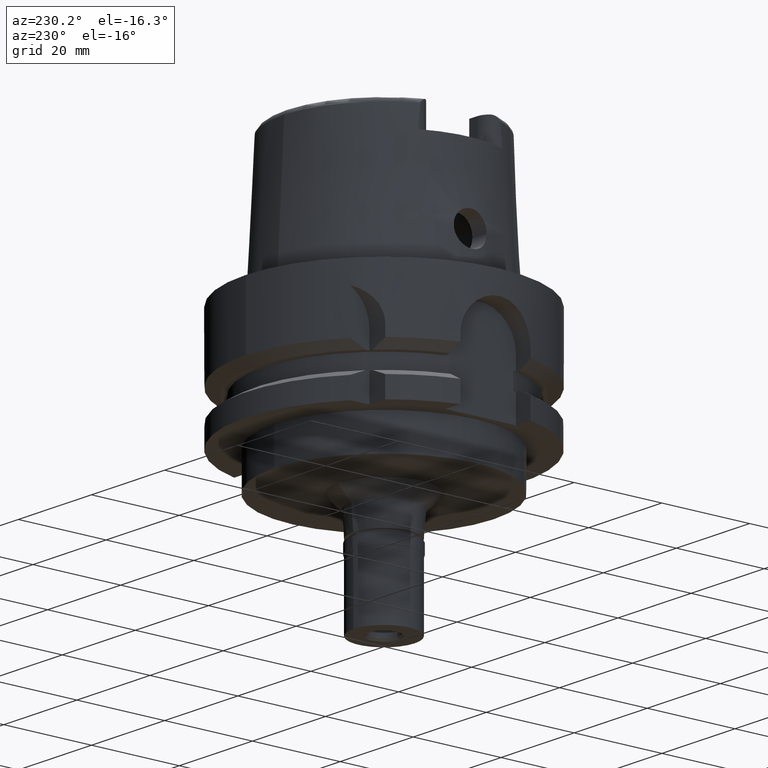
[diagram: clean part render]
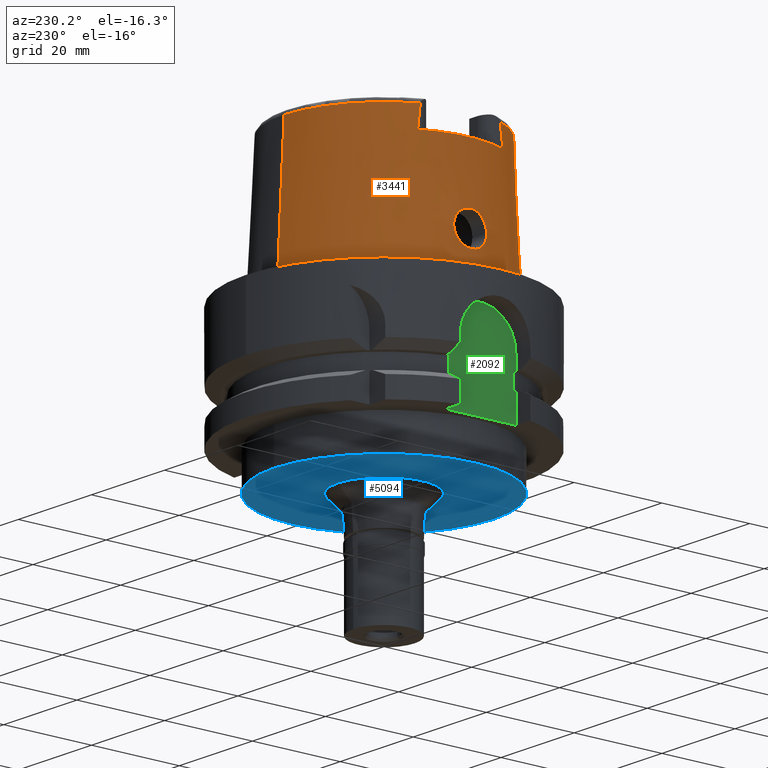
[diagram: same view with three faces highlighted in distinct colors, each labeled with its STEP entity id]
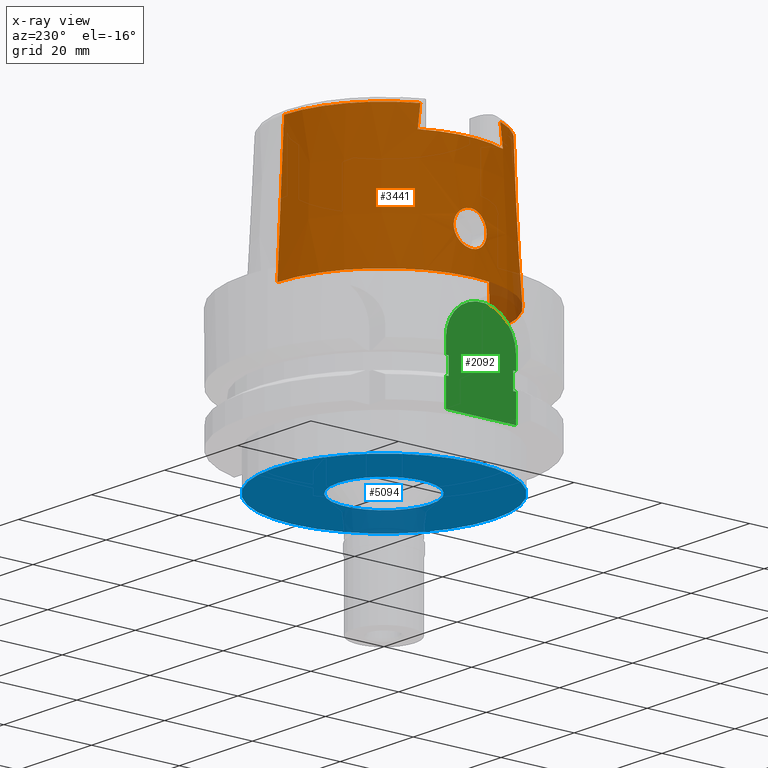
[diagram: x-ray of the same camera — body ghosted, the three highlighted faces saturated]
A machine part, auxiliary view with three faces highlighted in distinct colors.
The next image is the same camera in x-ray (body ghosted, the three faces saturated) — at least one of them is partly hidden behind the body in this view.
Their STEP definitions:

[orange] entity #3441 — the highlighted conical surface has half-angle 2.862 deg.
#4 = CARTESIAN_POINT ( 'NONE',  ( -23.58875001699196616, 2.574564850797994797, 11.72685958662398065 ) ) ;
#64 = CARTESIAN_POINT ( 'NONE',  ( -23.57128477181484882, 2.845667545521203490, 11.45766602963689351 ) ) ;
#71 = CARTESIAN_POINT ( 'NONE',  ( -20.87000036879000220, -9.149999171677000831, 30.54561049348000168 ) ) ;
#116 = CARTESIAN_POINT ( 'NONE',  ( -23.61657924669164288, -2.098325909179071136, 12.10797902731429687 ) ) ;
#129 = CARTESIAN_POINT ( 'NONE',  ( -24.04786263195594387, -0.4702633126472390845, 5.271690481783152471 ) ) ;
#154 = CARTESIAN_POINT ( 'NONE',  ( -23.99493838177408023, 1.440337845687796658, 5.537632199437698688 ) ) ;
#179 = CARTESIAN_POINT ( 'NONE',  ( -23.67991024269454670, 3.482346711928610450, 7.608659429627059545 ) ) ;
#205 = CARTESIAN_POINT ( 'NONE',  ( -23.54530297632626912, 3.701256703280609628, 9.614858301446849609 ) ) ;
#207 = CIRCLE ( 'NONE', #3477, 23.01499170873999134 ) ;
#236 = CARTESIAN_POINT ( 'NONE',  ( -23.97818696997195786, 1.634535709027145955, 5.624510286457308439 ) ) ;
#257 = ORIENTED_EDGE ( 'NONE', *, *, #438, .F. ) ;
#258 = CARTESIAN_POINT ( 'NONE',  ( -23.65001929101382316, 3.585069880303221712, 7.898283477232346250 ) ) ;
#281 = CARTESIAN_POINT ( 'NONE',  ( -23.83826107940458527, -2.728895089891620440, 6.425026308780917184 ) ) ;
#300 = VERTEX_POINT ( 'NONE', #1560 ) ;
#301 = EDGE_CURVE ( 'NONE', #3982, #883, #1581, .T. ) ;
#311 = CARTESIAN_POINT ( 'NONE',  ( -23.88426097276597204, -2.431710584441462153, 6.144432247697729110 ) ) ;
#331 = FACE_OUTER_BOUND ( 'NONE', #4742, .T. ) ;
#332 = CARTESIAN_POINT ( 'NONE',  ( -20.86999862957999952, 9.150003078075000573, 30.54568808301000260 ) ) ;
#335 = CARTESIAN_POINT ( 'NONE',  ( -23.57049151206109627, -3.749931562641862115, 8.962612975199364840 ) ) ;
#361 = CARTESIAN_POINT ( 'NONE',  ( -20.86999589934088206, 9.333533360508882382, 29.07185877597611423 ) ) ;
#363 = CARTESIAN_POINT ( 'NONE',  ( -23.57758549317970420, -2.752301977997573257, 11.54745544573285621 ) ) ;
#399 = CARTESIAN_POINT ( 'NONE',  ( -23.57990425752204544, -3.745051751882298330, 8.792906414019661554 ) ) ;
#415 = CARTESIAN_POINT ( 'NONE',  ( -20.87000036879000220, -9.145652147808000620, 30.58051874095000144 ) ) ;
#432 = CARTESIAN_POINT ( 'NONE',  ( -23.62931708850320689, -1.857752631484371975, 12.25985696227647104 ) ) ;
#438 = EDGE_CURVE ( 'NONE', #2729, #883, #1678, .T. ) ;
#460 = CARTESIAN_POINT ( 'NONE',  ( -23.64455459247221114, -1.525610330489168609, 12.42582259460134075 ) ) ;
#480 = DIRECTION ( 'NONE',  ( 0.0000000000000000000, 0.0000000000000000000, -1.000000000000000000 ) ) ;
#496 = CARTESIAN_POINT ( 'NONE',  ( -23.62970821708636393, 1.848056169651061342, 12.26369228928154698 ) ) ;
#516 = CARTESIAN_POINT ( 'NONE',  ( -23.63714667571653649, -1.692999689067097746, 12.34665581086419373 ) ) ;
#524 = CARTESIAN_POINT ( 'NONE',  ( -23.62529868437151848, 1.934705570356295645, 12.21255958658475471 ) ) ;
#532 = CARTESIAN_POINT ( 'NONE',  ( -20.87000294699999969, -9.702199254896999747, 26.00000000000000000 ) ) ;
#553 = CARTESIAN_POINT ( 'NONE',  ( -23.67751368057999883, 0.0000000000000000000, 12.75000000000000000 ) ) ;
#580 = CARTESIAN_POINT ( 'NONE',  ( -23.67006432208073008, 3.517764469676170513, 7.700118767947786935 ) ) ;
#609 = CARTESIAN_POINT ( 'NONE',  ( -23.76007306052839851, 3.144211881841432632, 6.956349106212639022 ) ) ;
#637 = CARTESIAN_POINT ( 'NONE',  ( -23.75806408867247654, 3.153762190329611581, 6.971118194561818804 ) ) ;
#639 = CARTESIAN_POINT ( 'NONE',  ( -20.86989308755000039, 9.124126285331000119, 30.75513742942000306 ) ) ;
#640 = EDGE_CURVE ( 'NONE', #2729, #3811, #3224, .T. ) ;
#642 = CARTESIAN_POINT ( 'NONE',  ( 0.0000000000000000000, -22.77198729362000051, 30.85992712280000205 ) ) ;
#659 = CARTESIAN_POINT ( 'NONE',  ( -23.62237113400223265, 3.666064389046725047, 8.201703203385223517 ) ) ;
#668 = CARTESIAN_POINT ( 'NONE',  ( -20.87000593984961938, -9.517515394184473010, 27.55706592323828730 ) ) ;
#684 = CARTESIAN_POINT ( 'NONE',  ( -23.65897439514683143, 3.556154743770473026, 7.806866387004321339 ) ) ;
#693 = DIRECTION ( 'NONE',  ( 0.0000000000000000000, 0.04993926899645239476, -0.9987522562738468945 ) ) ;
#706 = CARTESIAN_POINT ( 'NONE',  ( -23.65855430309792951, -3.562593482298612724, 7.799189175951979358 ) ) ;
#735 = CARTESIAN_POINT ( 'NONE',  ( -23.85944347772426966, -2.596594164589698384, 6.294305923045154572 ) ) ;
#765 = CARTESIAN_POINT ( 'NONE',  ( -23.69921245285050304, -3.409000711809893502, 7.437246423299503917 ) ) ;
#771 = B_SPLINE_CURVE_WITH_KNOTS ( 'NONE', 3,
 ( #2443, #1546, #668, #3260 ),
 .UNSPECIFIED., .F., .F.,
 ( 4, 4 ),
 ( 0.0000000000000000000, 1.000000000000000000 ),
 .UNSPECIFIED. ) ;
#792 = VERTEX_POINT ( 'NONE', #5342 ) ;
#793 = CARTESIAN_POINT ( 'NONE',  ( -23.70912838913670839, -3.369516560436834673, 7.352065524799214380 ) ) ;
#824 = CARTESIAN_POINT ( 'NONE',  ( -23.60572619668068484, -3.705337228431035967, 8.409952921779337842 ) ) ;
#840 = CARTESIAN_POINT ( 'NONE',  ( -20.86998014253000022, -9.136998446038999688, 30.65037012981000331 ) ) ;
#854 = CARTESIAN_POINT ( 'NONE',  ( -23.67751368057999883, 0.0000000000000000000, 12.75000000000000000 ) ) ;
#883 = VERTEX_POINT ( 'NONE', #2231 ) ;
#910 = CARTESIAN_POINT ( 'NONE',  ( -23.63957370645141154, -1.639864010352753976, 12.37291126517441242 ) ) ;
#917 = CARTESIAN_POINT ( 'NONE',  ( 0.0000000000000000000, 22.77198729362000051, 30.85992712280000205 ) ) ;
#948 = CARTESIAN_POINT ( 'NONE',  ( -23.64959580141450601, 1.401413020741177018, 12.47830550234064617 ) ) ;
#971 = CARTESIAN_POINT ( 'NONE',  ( -23.67751368058000949, -0.4545925740204055376, 12.75000000000000178 ) ) ;
#984 = CARTESIAN_POINT ( 'NONE',  ( -24.05252611746999847, 7.753366781647998699E-14, 5.250000000000000000 ) ) ;
#1010 = CARTESIAN_POINT ( 'NONE',  ( -24.05252611747000913, -0.2325259389844430147, 5.249999999999995559 ) ) ;
#1021 = CONICAL_SURFACE ( 'NONE', #4348, 23.54351105844999736, 0.04996004983832824653 ) ;
#1037 = B_SPLINE_CURVE_WITH_KNOTS ( 'NONE', 3,
 ( #71, #415, #840, #4248, #3875, #2545 ),
 .UNSPECIFIED., .F., .F.,
 ( 4, 1, 1, 4 ),
 ( 0.0000000000000000000, 0.3333333333333000081, 0.6666666666667000474, 1.000000000000000000 ),
 .UNSPECIFIED. ) ;
#1041 = AXIS2_PLACEMENT_3D ( 'NONE', #1102, #4514, #2405 ) ;
#1057 = CARTESIAN_POINT ( 'NONE',  ( -23.53725573122616765, 3.557858485254748349, 10.21118617482782476 ) ) ;
#1084 = CARTESIAN_POINT ( 'NONE',  ( -23.79034258004921654, 2.994405124270681284, 6.739210068966854372 ) ) ;
#1102 = CARTESIAN_POINT ( 'NONE',  ( 0.0000000000000000000, 0.0000000000000000000, 1.136868377215999875E-13 ) ) ;
#1110 = CARTESIAN_POINT ( 'NONE',  ( -23.77618571331245079, 3.066995713114651689, 6.838710927175277732 ) ) ;
#1161 = CARTESIAN_POINT ( 'NONE',  ( -23.58295904043572122, -2.665667729226151472, 11.63755863581591754 ) ) ;
#1186 = CARTESIAN_POINT ( 'NONE',  ( -23.58534140365796361, -3.738892855428105566, 8.705622209991876304 ) ) ;
#1200 = VECTOR ( 'NONE', #693, 1000.000000000000000 ) ;
#1213 = EDGE_LOOP ( 'NONE', ( #3374, #1283 ) ) ;
#1214 = CARTESIAN_POINT ( 'NONE',  ( -23.98201706802171174, -1.602910457251492726, 5.604103511304382224 ) ) ;
#1233 = CARTESIAN_POINT ( 'NONE',  ( 0.0000000000000000000, 24.31503482328999866, 1.136868377215999875E-13 ) ) ;
#1234 = VERTEX_POINT ( 'NONE', #3124 ) ;
#1247 = CARTESIAN_POINT ( 'NONE',  ( -23.99772560849472924, -1.405650542215104881, 5.523405557853796388 ) ) ;
#1276 = CARTESIAN_POINT ( 'NONE',  ( -23.89176524947148650, -2.378653585503664125, 6.100160176395899470 ) ) ;
#1283 = ORIENTED_EDGE ( 'NONE', *, *, #1642, .F. ) ;
#1306 = CARTESIAN_POINT ( 'NONE',  ( -23.60633077792958190, -2.281161106848900832, 11.97686305018727104 ) ) ;
#1362 = CARTESIAN_POINT ( 'NONE',  ( -23.59773053671585075, -2.428579577243722643, 11.85885565549168241 ) ) ;
#1396 = CARTESIAN_POINT ( 'NONE',  ( -23.59421910397722755, -2.486437859569925912, 11.80783448945993541 ) ) ;
#1404 = CARTESIAN_POINT ( 'NONE',  ( -23.59785341691926774, 2.426157914605385102, 11.86007394336473908 ) ) ;
#1431 = CARTESIAN_POINT ( 'NONE',  ( -23.56133259209761377, 3.007549785901466155, 11.25316385626255133 ) ) ;
#1486 = EDGE_CURVE ( 'NONE', #300, #2438, #771, .T. ) ;
#1488 = CARTESIAN_POINT ( 'NONE',  ( -23.53989810549436612, 3.456277710252088742, 10.45488464985181665 ) ) ;
#1491 = CARTESIAN_POINT ( 'NONE',  ( -20.86998096573000083, 9.136997359048001144, 30.65033297779000065 ) ) ;
#1515 = CARTESIAN_POINT ( 'NONE',  ( -23.94687265321820746, 1.945161834120303856, 5.791490483410829171 ) ) ;
#1541 = CARTESIAN_POINT ( 'NONE',  ( -23.74249516755747891, 3.226044268643991408, 7.087871960353561818 ) ) ;
#1546 = CARTESIAN_POINT ( 'NONE',  ( -20.87000110298124866, -9.333470438818018522, 29.07226938048291842 ) ) ;
#1560 = CARTESIAN_POINT ( 'NONE',  ( -20.87000036879000220, -9.149999171677000831, 30.54561049348000168 ) ) ;
#1568 = CARTESIAN_POINT ( 'NONE',  ( -23.99452863939412595, 1.445392203430266198, 5.539741759684884137 ) ) ;
#1581 = CIRCLE ( 'NONE', #1041, 24.31503482328999866 ) ;
#1595 = DIRECTION ( 'NONE',  ( 0.0000000000000000000, 0.0000000000000000000, -1.000000000000000000 ) ) ;
#1602 = CARTESIAN_POINT ( 'NONE',  ( -23.58261465558709347, -2.671205752385319432, 11.63195149976124831 ) ) ;
#1623 = DIRECTION ( 'NONE',  ( -0.9164655183265837390, 0.4001136759951928745, 0.0000000000000000000 ) ) ;
#1626 = CARTESIAN_POINT ( 'NONE',  ( -23.59696935345301227, -3.722233984854299571, 8.529482803203466190 ) ) ;
#1642 = EDGE_CURVE ( 'NONE', #5544, #1234, #5500, .T. ) ;
#1656 = CARTESIAN_POINT ( 'NONE',  ( -23.99887326313295333, -1.390995723918068805, 5.517516222861456043 ) ) ;
#1678 = LINE ( 'NONE', #3376, #4723 ) ;
#1684 = CARTESIAN_POINT ( 'NONE',  ( -23.99701889202876615, -1.414584352107863818, 5.527034533265432259 ) ) ;
#1694 = B_SPLINE_CURVE_WITH_KNOTS ( 'NONE', 3,
 ( #4679, #5485, #361, #332 ),
 .UNSPECIFIED., .F., .F.,
 ( 4, 4 ),
 ( 0.0000000000000000000, 1.000000000000000000 ),
 .UNSPECIFIED. ) ;
#1714 = CARTESIAN_POINT ( 'NONE',  ( -23.85633652460178311, -2.616246736698623288, 6.313396781246351175 ) ) ;
#1743 = CARTESIAN_POINT ( 'NONE',  ( -23.60404926964810457, -2.320662855615145848, 11.94604183881587822 ) ) ;
#1784 = ORIENTED_EDGE ( 'NONE', *, *, #2164, .T. ) ;
#1795 = DIRECTION ( 'NONE',  ( -0.0009289215035773248919, -0.9999995685523268563, 0.0000000000000000000 ) ) ;
#1831 = CARTESIAN_POINT ( 'NONE',  ( -23.62336603701600168, -1.974776590561349909, 12.19128240091901283 ) ) ;
#1837 = CARTESIAN_POINT ( 'NONE',  ( -23.61183321109423261, 2.185152663705764997, 12.05002763737759430 ) ) ;
#1866 = CARTESIAN_POINT ( 'NONE',  ( -23.62302681550758265, 1.978568988340684509, 12.18589201695617241 ) ) ;
#1891 = CARTESIAN_POINT ( 'NONE',  ( -24.05252611747000557, 0.4686397481751468641, 5.250000000000009770 ) ) ;
#1917 = CARTESIAN_POINT ( 'NONE',  ( -23.67576986190902488, 3.497385901686971721, 7.646759291312835494 ) ) ;
#1946 = CARTESIAN_POINT ( 'NONE',  ( -23.83490326423959971, 2.746041478824620796, 6.445902998444733356 ) ) ;
#1971 = ORIENTED_EDGE ( 'NONE', *, *, #1486, .T. ) ;
#1973 = CARTESIAN_POINT ( 'NONE',  ( -23.54004177108325635, 3.451053092575791403, 10.46723464619089228 ) ) ;
#1997 = CARTESIAN_POINT ( 'NONE',  ( -23.72430634662387661, 3.306446947548019377, 7.229778946653763860 ) ) ;
#2020 = FACE_BOUND ( 'NONE', #1213, .T. ) ;
#2023 = CARTESIAN_POINT ( 'NONE',  ( -23.57503235452857382, -3.748151059429171372, 8.878855396218595430 ) ) ;
#2049 = CARTESIAN_POINT ( 'NONE',  ( -23.53846546200051648, -3.576437483214371049, 10.12934956082458982 ) ) ;
#2075 = CARTESIAN_POINT ( 'NONE',  ( -23.54140459359493320, -3.393719239049563630, 10.60788145283110318 ) ) ;
#2106 = CARTESIAN_POINT ( 'NONE',  ( -23.53949835527918921, -3.472071047647863118, 10.41677867466162510 ) ) ;
#2140 = CARTESIAN_POINT ( 'NONE',  ( -23.54098471601965414, -3.658672201994147777, 9.831599541267577180 ) ) ;
#2160 = VERTEX_POINT ( 'NONE', #4205 ) ;
#2164 = EDGE_CURVE ( 'NONE', #792, #4301, #1694, .T. ) ;
#2171 = CARTESIAN_POINT ( 'NONE',  ( -23.61426561017464820, -2.140262431694830436, 12.07931298180139024 ) ) ;
#2178 = CARTESIAN_POINT ( 'NONE',  ( -23.66477397101428437, 0.9438609081349317309, 12.63150019554256787 ) ) ;
#2201 = CARTESIAN_POINT ( 'NONE',  ( -23.66767645628794625, -0.9506180506935489882, 12.66630000847015047 ) ) ;
#2209 = CARTESIAN_POINT ( 'NONE',  ( -23.65635666290836170, 1.218310712611046620, 12.54761577065941403 ) ) ;
#2212 = EDGE_CURVE ( 'NONE', #2160, #4369, #2396, .T. ) ;
#2231 = CARTESIAN_POINT ( 'NONE',  ( 0.0000000000000000000, -24.31503482328999866, 2.273736754432000254E-13 ) ) ;
#2243 = CARTESIAN_POINT ( 'NONE',  ( -23.61823423931804200, 2.068046002492666791, 12.12822096296628516 ) ) ;
#2274 = CARTESIAN_POINT ( 'NONE',  ( -23.61904744769478626, 2.053038305068064950, 12.13809088133069736 ) ) ;
#2302 = CARTESIAN_POINT ( 'NONE',  ( -23.65048445303040836, 1.378546011680560790, 12.48748941791897771 ) ) ;
#2316 = CARTESIAN_POINT ( 'NONE',  ( 0.0000000000000000000, 0.0000000000000000000, 30.85992712280000205 ) ) ;
#2333 = CARTESIAN_POINT ( 'NONE',  ( -23.88082930376615209, 2.470912688416677661, 6.164731789100730275 ) ) ;
#2358 = CARTESIAN_POINT ( 'NONE',  ( -23.69217256922310000, 3.437262524157945087, 7.497166384725877819 ) ) ;
#2383 = CARTESIAN_POINT ( 'NONE',  ( -23.76121816602158887, 3.138742998056851086, 6.947964058292937395 ) ) ;
#2396 = CIRCLE ( 'NONE', #2751, 22.77198729362000407 ) ;
#2405 = DIRECTION ( 'NONE',  ( 0.0000000000000000000, 1.000000000000000000, 0.0000000000000000000 ) ) ;
#2412 = CARTESIAN_POINT ( 'NONE',  ( -23.68092057035875087, 3.478645460241212017, 7.599440154359249355 ) ) ;
#2438 = VERTEX_POINT ( 'NONE', #532 ) ;
#2439 = CARTESIAN_POINT ( 'NONE',  ( -23.63284314611395232, 3.637771678380860685, 8.080685805202303840 ) ) ;
#2443 = CARTESIAN_POINT ( 'NONE',  ( -20.87000036879000220, -9.149999171677000831, 30.54561049348000168 ) ) ;
#2461 = CARTESIAN_POINT ( 'NONE',  ( -23.63501135645667972, -3.635256369734864990, 8.047041842494119024 ) ) ;
#2483 = CARTESIAN_POINT ( 'NONE',  ( -23.69263770067710340, -3.434674333468200835, 7.494511103453328715 ) ) ;
#2509 = CARTESIAN_POINT ( 'NONE',  ( -23.57191002878680308, -3.749559467280792813, 8.935842532388244663 ) ) ;
#2531 = CARTESIAN_POINT ( 'NONE',  ( -23.57118140083235858, -2.856502157035859746, 11.43057739892035407 ) ) ;
#2545 = CARTESIAN_POINT ( 'NONE',  ( -20.86974104083000014, -9.111384061287999714, 30.85992586405999916 ) ) ;
#2555 = DIRECTION ( 'NONE',  ( 0.0000000000000000000, -0.04993926899645239476, -0.9987522562738468945 ) ) ;
#2563 = CARTESIAN_POINT ( 'NONE',  ( -23.92660915315514103, -2.113944771570166026, 5.900184339261637767 ) ) ;
#2623 = CARTESIAN_POINT ( 'NONE',  ( -23.61546504976417893, -2.118563223874196932, 12.09423508382772106 ) ) ;
#2630 = CARTESIAN_POINT ( 'NONE',  ( -23.64466224768515801, 1.525612339504214932, 12.42714020488512539 ) ) ;
#2658 = CARTESIAN_POINT ( 'NONE',  ( -23.66780723519659446, 0.8223885475600015704, 12.66076040845475248 ) ) ;
#2729 = VERTEX_POINT ( 'NONE', #642 ) ;
#2743 = CARTESIAN_POINT ( 'NONE',  ( -23.84386821415474955, 2.692949573564023424, 6.390290876716446355 ) ) ;
#2748 = CARTESIAN_POINT ( 'NONE',  ( -24.03387217541375875, -0.8278633929818539627, 5.340508633119534387 ) ) ;
#2751 = AXIS2_PLACEMENT_3D ( 'NONE', #3382, #5515, #1623 ) ;
#2773 = CARTESIAN_POINT ( 'NONE',  ( -23.70417730729012717, 3.390762011813425403, 7.393659762726938034 ) ) ;
#2788 = CARTESIAN_POINT ( 'NONE',  ( 0.0000000000000000000, 0.0000000000000000000, 26.00000000000000000 ) ) ;
#2799 = CARTESIAN_POINT ( 'NONE',  ( -23.55469401127745499, 3.737167262014310598, 9.315735908169866519 ) ) ;
#2804 = CARTESIAN_POINT ( 'NONE',  ( -24.05252611746999847, 7.753366781647998699E-14, 5.250000000000000000 ) ) ;
#2827 = CARTESIAN_POINT ( 'NONE',  ( -23.54852264906663351, 3.719122323052471479, 9.495037754207018565 ) ) ;
#2840 = DIRECTION ( 'NONE',  ( -0.9068002397791221636, -0.4215605829967106200, 0.0000000000000000000 ) ) ;
#2853 = CARTESIAN_POINT ( 'NONE',  ( -23.95812563065743817, 1.840562237704927329, 5.730689896985759368 ) ) ;
#2867 = ORIENTED_EDGE ( 'NONE', *, *, #3809, .T. ) ;
#2899 = DIRECTION ( 'NONE',  ( 0.0000000000000000000, -1.000000000000000000, 0.0000000000000000000 ) ) ;
#2902 = CARTESIAN_POINT ( 'NONE',  ( -23.58295913658140819, -2.665666183362326969, 11.63756019815255094 ) ) ;
#2933 = CARTESIAN_POINT ( 'NONE',  ( -23.82426386048327771, -2.811194767827681851, 6.515137448596711955 ) ) ;
#2960 = CARTESIAN_POINT ( 'NONE',  ( -23.55679650252234580, -3.097643467950029539, 11.11708170241793425 ) ) ;
#2987 = CARTESIAN_POINT ( 'NONE',  ( -23.85303015050943642, -2.636998482311042391, 6.333767256399493562 ) ) ;
#3020 = CARTESIAN_POINT ( 'NONE',  ( -24.00058108253507427, -1.368999521322072033, 5.508757255141586207 ) ) ;
#3056 = CARTESIAN_POINT ( 'NONE',  ( -23.64899862752861281, 1.416654443532506136, 12.47212583440400557 ) ) ;
#3077 = CARTESIAN_POINT ( 'NONE',  ( -23.64769459444469391, -1.449324916011546449, 12.45861624969296244 ) ) ;
#3105 = CARTESIAN_POINT ( 'NONE',  ( -23.64704845611656481, -1.465266549707331833, 12.45188866682913442 ) ) ;
#3117 = CARTESIAN_POINT ( 'NONE',  ( -24.00447035658683248, -1.317581027631066215, 5.488844280454599378 ) ) ;
#3124 = CARTESIAN_POINT ( 'NONE',  ( -23.67751368057999883, 0.0000000000000000000, 12.75000000000000000 ) ) ;
#3137 = CARTESIAN_POINT ( 'NONE',  ( -23.61001593630786743, -2.216236755683048898, 12.02514826851545671 ) ) ;
#3170 = CARTESIAN_POINT ( 'NONE',  ( -23.55031250820433186, 3.207613484396453885, 10.94643687392604825 ) ) ;
#3213 = CARTESIAN_POINT ( 'NONE',  ( -20.86974104083000014, -9.111384061287999714, 30.85992586405999916 ) ) ;
#3223 = ORIENTED_EDGE ( 'NONE', *, *, #5380, .F. ) ;
#3224 = CIRCLE ( 'NONE', #4825, 22.77198729362000051 ) ;
#3225 = CARTESIAN_POINT ( 'NONE',  ( -23.53832766430576484, 3.629659773393070221, 9.973384603927549108 ) ) ;
#3227 = CARTESIAN_POINT ( 'NONE',  ( -20.86999862957999952, 9.145655815666000166, 30.58059829087000026 ) ) ;
#3249 = CARTESIAN_POINT ( 'NONE',  ( -23.84566289372023462, 2.682225699652898143, 6.379270252385876638 ) ) ;
#3260 = CARTESIAN_POINT ( 'NONE',  ( -20.87000294699999969, -9.702199254896999747, 26.00000000000000000 ) ) ;
#3275 = ORIENTED_EDGE ( 'NONE', *, *, #5205, .T. ) ;
#3276 = CARTESIAN_POINT ( 'NONE',  ( -23.56626875707837243, 3.749818680173074181, 9.046284839229723929 ) ) ;
#3304 = CARTESIAN_POINT ( 'NONE',  ( -24.03352810157031172, 0.9601895432194839097, 5.339091037649883909 ) ) ;
#3321 = B_SPLINE_CURVE_WITH_KNOTS ( 'NONE', 3,
 ( #5359, #3657, #639, #1491, #3227, #4927 ),
 .UNSPECIFIED., .F., .F.,
 ( 4, 1, 1, 4 ),
 ( 0.0000000000000000000, 0.3333333333333000081, 0.6666666666667000474, 1.000000000000000000 ),
 .UNSPECIFIED. ) ;
#3332 = CARTESIAN_POINT ( 'NONE',  ( -23.58276216703778516, -2.668833443514325499, 11.63435557945982346 ) ) ;
#3357 = CARTESIAN_POINT ( 'NONE',  ( -23.73957570233450198, -3.239031817246297074, 7.106215931725332169 ) ) ;
#3374 = ORIENTED_EDGE ( 'NONE', *, *, #4375, .F. ) ;
#3376 = CARTESIAN_POINT ( 'NONE',  ( 0.0000000000000000000, -22.77198729362000051, 30.85992712280000205 ) ) ;
#3382 = CARTESIAN_POINT ( 'NONE',  ( 0.0000000000000000000, 0.0000000000000000000, 30.85992712280000205 ) ) ;
#3385 = CARTESIAN_POINT ( 'NONE',  ( -23.85425592571510478, -2.629335462662236278, 6.326205156132876262 ) ) ;
#3415 = CARTESIAN_POINT ( 'NONE',  ( -23.53928418518816912, -3.481478646783141784, 10.39350918638659493 ) ) ;
#3441 = ADVANCED_FACE ( 'NONE', ( #331, #2020 ), #1021, .T. ) ;
#3444 = CARTESIAN_POINT ( 'NONE',  ( -23.53874007220101916, -3.510010084645736494, 10.32062163400943078 ) ) ;
#3477 = AXIS2_PLACEMENT_3D ( 'NONE', #2788, #5345, #2840 ) ;
#3480 = CARTESIAN_POINT ( 'NONE',  ( -20.86999862957999952, 9.150003078075000573, 30.54568808301000260 ) ) ;
#3540 = CARTESIAN_POINT ( 'NONE',  ( -23.54729051118700056, 3.267216221735882442, 10.84415113251054841 ) ) ;
#3548 = CARTESIAN_POINT ( 'NONE',  ( -24.01754997611454812, -1.125465729254620850, 5.422337669083868050 ) ) ;
#3572 = CARTESIAN_POINT ( 'NONE',  ( -23.59365421128901374, 2.495878894977920481, 11.79994273551090700 ) ) ;
#3607 = CARTESIAN_POINT ( 'NONE',  ( -23.58524494825480033, 2.629664143542140842, 11.67349991891265937 ) ) ;
#3627 = CARTESIAN_POINT ( 'NONE',  ( -24.05252611746999847, 7.753366781647998699E-14, 5.250000000000000000 ) ) ;
#3654 = CARTESIAN_POINT ( 'NONE',  ( -23.54220084913410460, 3.384474848952184978, 10.61652621491445636 ) ) ;
#3657 = CARTESIAN_POINT ( 'NONE',  ( -20.86979790994000084, 9.115619351731998776, 30.82499135184999872 ) ) ;
#3671 = B_SPLINE_CURVE_WITH_KNOTS ( 'NONE', 3,
 ( #553, #4298, #4809, #2658, #2178, #5305, #2209, #3983, #2302, #948, #3056, #4867, #2630, #4355, #4386, #496, #524, #1866, #4325, #2274, #2243, #3898, #1837, #4413, #1404, #3572, #4, #4010, #3607, #3953, #64, #1431, #3170, #3540, #5409, #3654, #4061, #4924, #1973, #1488, #5357, #1057, #3225, #205, #2827, #2799, #4473, #4496, #5007, #3276, #4978, #4133, #659, #2439, #258, #684, #580, #1917, #4443, #179, #2412, #2358, #2773, #1997, #3729, #1541, #4034, #4113, #637, #609, #2383, #1110, #1084, #4521, #4085, #1946, #4550, #2743, #3249, #3683, #2333, #5384, #1515, #2853, #4950, #236, #3702, #5438, #5332, #4896, #1568, #154, #3304, #1891, #3627 ),
 .UNSPECIFIED., .F., .F.,
 ( 4, 2, 2, 1, 1, 1, 2, 2, 2, 2, 1, 1, 2, 2, 2, 1, 1, 2, 2, 2, 2, 1, 1, 1, 2, 2, 2, 2, 1, 2, 2, 2, 2, 1, 1, 1, 2, 2, 2, 2, 1, 1, 2, 2, 2, 1, 1, 1, 2, 2, 2, 2, 2, 1, 1, 2, 2, 4 ),
 ( 0.0000000000000000000, 0.06249999999999131250, 0.09374999999998696876, 0.1093749999999848455, 0.1171874999999837769, 0.1210937499999831524, 0.1230468749999828332, 0.1249999999999825001, 0.1562499999999766853, 0.1718749999999737710, 0.1796874999999724665, 0.1835937499999717448, 0.1855468749999714673, 0.1874999999999711897, 0.2187499999999676925, 0.2343749999999657774, 0.2421874999999649447, 0.2460937499999646116, 0.2499999999999642508, 0.3124999999999592548, 0.3437499999999569789, 0.3593749999999558131, 0.3671874999999550360, 0.3710937499999546474, 0.3730468749999544809, 0.3749999999999543143, 0.4374999999999520939, 0.4687499999999510392, 0.4843749999999504841, 0.4921874999999504841, 0.4999999999999503730, 0.5624999999999520384, 0.5937499999999530376, 0.6093749999999534817, 0.6171874999999537037, 0.6210937499999539257, 0.6230468749999542588, 0.6249999999999544809, 0.6562499999999569233, 0.6718749999999581446, 0.6796874999999585887, 0.6835937499999586997, 0.6855468749999589217, 0.6874999999999590328, 0.7187499999999632516, 0.7343749999999653610, 0.7421874999999663602, 0.7460937499999669154, 0.7480468749999671374, 0.7499999999999674705, 0.8124999999999760192, 0.8437499999999803491, 0.8593749999999824585, 0.8671874999999835687, 0.8710937499999841238, 0.8730468749999844569, 0.8749999999999846789, 1.000000000000000000 ),
 .UNSPECIFIED. ) ;
#3683 = CARTESIAN_POINT ( 'NONE',  ( -23.84641554979620182, 2.677717912690902313, 6.374660684483104411 ) ) ;
#3702 = CARTESIAN_POINT ( 'NONE',  ( -23.98499695934207665, 1.558373078740567852, 5.589023923414884187 ) ) ;
#3729 = CARTESIAN_POINT ( 'NONE',  ( -23.73136968177400519, 3.275911737049509664, 7.173724187294596710 ) ) ;
#3755 = CARTESIAN_POINT ( 'NONE',  ( -23.53941486467522282, -3.475623669595858889, 10.40804883718421259 ) ) ;
#3783 = CARTESIAN_POINT ( 'NONE',  ( -23.53943552759770341, -3.629450424016635424, 9.951278942848608366 ) ) ;
#3791 = LINE ( 'NONE', #5065, #1200 ) ;
#3806 = CARTESIAN_POINT ( 'NONE',  ( -23.71920574950118166, -3.327200404038318737, 7.269090188957425092 ) ) ;
#3809 = EDGE_CURVE ( 'NONE', #2438, #792, #207, .T. ) ;
#3811 = VERTEX_POINT ( 'NONE', #3213 ) ;
#3812 = ORIENTED_EDGE ( 'NONE', *, *, #640, .T. ) ;
#3835 = CARTESIAN_POINT ( 'NONE',  ( -23.58158811522954679, -2.687724209579044565, 11.61510602626112565 ) ) ;
#3865 = CARTESIAN_POINT ( 'NONE',  ( -23.87255831106705983, -2.511024546857539619, 6.214591302214840240 ) ) ;
#3875 = CARTESIAN_POINT ( 'NONE',  ( -20.86979783654000187, -9.115619586084999781, 30.82499216672999864 ) ) ;
#3898 = CARTESIAN_POINT ( 'NONE',  ( -23.61776135763010842, 2.076728802511451644, 12.12245997762720684 ) ) ;
#3953 = CARTESIAN_POINT ( 'NONE',  ( -23.58462726095619999, 2.639286925276977502, 11.66401186884785091 ) ) ;
#3982 = VERTEX_POINT ( 'NONE', #1233 ) ;
#3983 = CARTESIAN_POINT ( 'NONE',  ( -23.65250820897705353, 1.325160410897292751, 12.50832160061447418 ) ) ;
#4004 = CARTESIAN_POINT ( 'NONE',  ( -23.61633343095116544, -2.102797514659827005, 12.10495687921223862 ) ) ;
#4010 = CARTESIAN_POINT ( 'NONE',  ( -23.58664712206572034, 2.607703304199708860, 11.69492463744779975 ) ) ;
#4034 = CARTESIAN_POINT ( 'NONE',  ( -23.74819053121377621, 3.200094302888430331, 7.044504337339008160 ) ) ;
#4061 = CARTESIAN_POINT ( 'NONE',  ( -23.54083897517103807, 3.424232678980053457, 10.52918928310886670 ) ) ;
#4085 = CARTESIAN_POINT ( 'NONE',  ( -23.82237865914292740, 2.818706542787620783, 6.525325091836688074 ) ) ;
#4113 = CARTESIAN_POINT ( 'NONE',  ( -23.75506720848416364, 3.167949189444115632, 6.993228603990502279 ) ) ;
#4133 = CARTESIAN_POINT ( 'NONE',  ( -23.59389135113169544, 3.732124280949487005, 8.560714361678973816 ) ) ;
#4155 = CARTESIAN_POINT ( 'NONE',  ( -23.96270988057523255, -1.802533652049870039, 5.702447734385652112 ) ) ;
#4175 = EDGE_CURVE ( 'NONE', #2160, #4301, #3321, .T. ) ;
#4184 = CARTESIAN_POINT ( 'NONE',  ( -23.53831885846084404, -3.547637457032381203, 10.21802196174116162 ) ) ;
#4205 = CARTESIAN_POINT ( 'NONE',  ( -20.86974110883999955, 9.111383540957000093, 30.85992743463999943 ) ) ;
#4207 = CARTESIAN_POINT ( 'NONE',  ( -23.55685296034376819, -3.750477339625063244, 9.230279457850643965 ) ) ;
#4234 = CARTESIAN_POINT ( 'NONE',  ( -23.57540872258554998, -2.787624089608288003, 11.50855629822389581 ) ) ;
#4248 = CARTESIAN_POINT ( 'NONE',  ( -20.86989334663000051, -9.124125030628999156, 30.75512636277000311 ) ) ;
#4265 = CARTESIAN_POINT ( 'NONE',  ( -23.54833971535697046, -3.728254169401865159, 9.471573072876566357 ) ) ;
#4298 = CARTESIAN_POINT ( 'NONE',  ( -23.67751368058000239, 0.2259949716182472756, 12.75000000000000178 ) ) ;
#4301 = VERTEX_POINT ( 'NONE', #3480 ) ;
#4318 = CARTESIAN_POINT ( 'NONE',  ( -23.64294000504933990, -1.563190650253537317, 12.40877266545564872 ) ) ;
#4324 = ORIENTED_EDGE ( 'NONE', *, *, #2212, .T. ) ;
#4325 = CARTESIAN_POINT ( 'NONE',  ( -23.62025887244659828, 2.030580434539052792, 12.15274460614073249 ) ) ;
#4348 = AXIS2_PLACEMENT_3D ( 'NONE', #5574, #1595, #2899 ) ;
#4355 = CARTESIAN_POINT ( 'NONE',  ( -23.64021439087101584, 1.627907845348050220, 12.38047373888065295 ) ) ;
#4369 = VERTEX_POINT ( 'NONE', #917 ) ;
#4375 = EDGE_CURVE ( 'NONE', #1234, #5544, #3671, .T. ) ;
#4386 = CARTESIAN_POINT ( 'NONE',  ( -23.63246896554555576, 1.791729767870870571, 12.29484462486127860 ) ) ;
#4413 = CARTESIAN_POINT ( 'NONE',  ( -23.60624597553781356, 2.283849337574764160, 11.97684278317219508 ) ) ;
#4443 = CARTESIAN_POINT ( 'NONE',  ( -23.67824950248429161, 3.488396603933228590, 7.623898136578246998 ) ) ;
#4473 = CARTESIAN_POINT ( 'NONE',  ( -23.55811515565792646, 3.744002733484677936, 9.226191289143917729 ) ) ;
#4488 = ORIENTED_EDGE ( 'NONE', *, *, #301, .T. ) ;
#4496 = CARTESIAN_POINT ( 'NONE',  ( -23.56203949495101924, 3.747615667807020490, 9.136965335698350898 ) ) ;
#4514 = DIRECTION ( 'NONE',  ( 0.0000000000000000000, 0.0000000000000000000, 1.000000000000000000 ) ) ;
#4521 = CARTESIAN_POINT ( 'NONE',  ( -23.81168252526064677, 2.878450169496514555, 6.595668926321640591 ) ) ;
#4550 = CARTESIAN_POINT ( 'NONE',  ( -23.84117701234643505, 2.708984544977019571, 6.406871283730472655 ) ) ;
#4596 = CARTESIAN_POINT ( 'NONE',  ( -23.58297144322994043, -2.665468312792887318, 11.63776017724156375 ) ) ;
#4626 = CARTESIAN_POINT ( 'NONE',  ( -23.75344264702919617, -3.175537763624994625, 7.001740669818794949 ) ) ;
#4652 = CARTESIAN_POINT ( 'NONE',  ( -23.56853147891041189, -2.900065209207122852, 11.37835197880777471 ) ) ;
#4679 = CARTESIAN_POINT ( 'NONE',  ( -20.87000000000000099, 9.702213322400000450, 26.00000000000000000 ) ) ;
#4682 = CARTESIAN_POINT ( 'NONE',  ( -23.78175048869693242, -3.040405524375463298, 6.801588144543464054 ) ) ;
#4713 = CARTESIAN_POINT ( 'NONE',  ( -23.61192423948602226, -2.182356302973512463, 12.04980242466027107 ) ) ;
#4723 = VECTOR ( 'NONE', #2555, 1000.000000000000000 ) ;
#4742 = EDGE_LOOP ( 'NONE', ( #1784, #4886, #4324, #3275, #4488, #257, #3812, #3223, #1971, #2867 ) ) ;
#4743 = CARTESIAN_POINT ( 'NONE',  ( -23.61598525692651407, -2.109122660605858179, 12.10066383407582968 ) ) ;
#4771 = CARTESIAN_POINT ( 'NONE',  ( -23.58578797340995692, -2.622991460273044417, 11.68284304388987849 ) ) ;
#4801 = CARTESIAN_POINT ( 'NONE',  ( -23.64752951702745065, -1.453408115535437695, 12.45689836118598848 ) ) ;
#4809 = CARTESIAN_POINT ( 'NONE',  ( -23.67508706923414508, 0.4615867730037528371, 12.72953032110730121 ) ) ;
#4825 = AXIS2_PLACEMENT_3D ( 'NONE', #2316, #480, #1795 ) ;
#4867 = CARTESIAN_POINT ( 'NONE',  ( -23.64862760047633827, 1.426033159393289118, 12.46828049561416485 ) ) ;
#4886 = ORIENTED_EDGE ( 'NONE', *, *, #4175, .F. ) ;
#4896 = CARTESIAN_POINT ( 'NONE',  ( -23.99351247664457532, 1.457860034848552644, 5.544976146218808744 ) ) ;
#4924 = CARTESIAN_POINT ( 'NONE',  ( -23.54026490264174853, 3.443149055100335865, 10.48577981917573787 ) ) ;
#4927 = CARTESIAN_POINT ( 'NONE',  ( -20.86999862957999952, 9.150003078075000573, 30.54568808301000260 ) ) ;
#4950 = CARTESIAN_POINT ( 'NONE',  ( -23.97337535310698797, 1.685780396100823975, 5.649771062859100468 ) ) ;
#4978 = CARTESIAN_POINT ( 'NONE',  ( -23.57881983383747126, 3.751048099821732595, 8.794541814616904318 ) ) ;
#5007 = CARTESIAN_POINT ( 'NONE',  ( -23.56476754223809777, 3.749315365813002732, 9.077569223627229178 ) ) ;
#5025 = CARTESIAN_POINT ( 'NONE',  ( -23.58286059017901337, -2.667250709600825775, 11.63595806498993923 ) ) ;
#5053 = CARTESIAN_POINT ( 'NONE',  ( -23.68956206320876845, -3.446460719427532737, 7.521647540970316292 ) ) ;
#5065 = CARTESIAN_POINT ( 'NONE',  ( 0.0000000000000000000, 22.77198729362000051, 30.85992712280000205 ) ) ;
#5083 = CARTESIAN_POINT ( 'NONE',  ( -23.86659541855744848, -2.550613065391599932, 6.250608251447705932 ) ) ;
#5116 = CARTESIAN_POINT ( 'NONE',  ( -23.58023550087865416, -2.709515494743356623, 11.59260189656702345 ) ) ;
#5149 = CARTESIAN_POINT ( 'NONE',  ( -23.53909874187190709, -3.490189168685152499, 10.37168105543809205 ) ) ;
#5205 = EDGE_CURVE ( 'NONE', #4369, #3982, #3791, .T. ) ;
#5249 = CARTESIAN_POINT ( 'NONE',  ( -24.01186635314429907, -1.214398174315399315, 5.451111449277782128 ) ) ;
#5267 = CARTESIAN_POINT ( 'NONE',  ( -23.64631829451574418, -1.483156678468701584, 12.44427686023888135 ) ) ;
#5305 = CARTESIAN_POINT ( 'NONE',  ( -23.65931409548612052, 1.126720884506294151, 12.57729532181089382 ) ) ;
#5332 = CARTESIAN_POINT ( 'NONE',  ( -23.99197550014751457, 1.476588159363075414, 5.552898292094472943 ) ) ;
#5337 = CARTESIAN_POINT ( 'NONE',  ( -24.02804281852118606, -0.9472126252595262086, 5.369483275113521081 ) ) ;
#5342 = CARTESIAN_POINT ( 'NONE',  ( -20.87000000000000099, 9.702213322400000450, 26.00000000000000000 ) ) ;
#5345 = DIRECTION ( 'NONE',  ( 0.0000000000000000000, 0.0000000000000000000, -1.000000000000000000 ) ) ;
#5357 = CARTESIAN_POINT ( 'NONE',  ( -23.53984039626358893, 3.458422178927291757, 10.44978529055217109 ) ) ;
#5359 = CARTESIAN_POINT ( 'NONE',  ( -20.86974110883999955, 9.111383540957000093, 30.85992743463999943 ) ) ;
#5380 = EDGE_CURVE ( 'NONE', #300, #3811, #1037, .T. ) ;
#5384 = CARTESIAN_POINT ( 'NONE',  ( -23.90985423348186245, 2.259796763613342918, 5.996906577708785768 ) ) ;
#5409 = CARTESIAN_POINT ( 'NONE',  ( -23.54373456208163518, 3.346991956848154537, 10.69216389589550609 ) ) ;
#5438 = CARTESIAN_POINT ( 'NONE',  ( -23.98830009504530381, 1.520467539935348888, 5.571881860946903409 ) ) ;
#5464 = CARTESIAN_POINT ( 'NONE',  ( -23.56108659088512880, -3.024011339058706227, 11.22162121709665783 ) ) ;
#5485 = CARTESIAN_POINT ( 'NONE',  ( -20.86999862004314110, 9.517583207379255228, 27.55662945290209720 ) ) ;
#5487 = CARTESIAN_POINT ( 'NONE',  ( -23.79607558923065724, -2.966630151329884502, 6.702944609451350289 ) ) ;
#5500 = B_SPLINE_CURVE_WITH_KNOTS ( 'NONE', 3,
 ( #2804, #1010, #129, #2748, #5337, #3548, #5249, #3117, #3020, #1656, #1247, #1684, #1214, #4155, #2563, #5578, #1276, #311, #3865, #5083, #735, #1714, #3385, #2987, #281, #2933, #5487, #4682, #4626, #3357, #3806, #793, #765, #2483, #5053, #706, #2461, #824, #1626, #1186, #399, #2023, #2509, #335, #4207, #4265, #2140, #3783, #2049, #4184, #3444, #5149, #3415, #3755, #2106, #2075, #5518, #2960, #5464, #4652, #2531, #4234, #363, #5116, #3835, #5545, #1602, #3332, #5025, #1161, #2902, #4596, #4771, #1396, #1362, #1743, #1306, #3137, #4713, #2171, #2623, #4743, #4004, #116, #1831, #432, #516, #910, #4318, #460, #5267, #3105, #4801, #3077, #2201, #971, #854 ),
 .UNSPECIFIED., .F., .F.,
 ( 4, 2, 2, 1, 1, 1, 2, 2, 2, 2, 2, 1, 1, 2, 2, 2, 2, 2, 1, 2, 2, 2, 2, 1, 2, 2, 2, 2, 1, 1, 1, 2, 2, 2, 2, 2, 1, 1, 1, 1, 1, 2, 3, 2, 2, 2, 1, 1, 1, 2, 2, 2, 2, 1, 1, 2, 2, 4 ),
 ( 0.0000000000000000000, 0.04999999999999692191, 0.07499999999999540368, 0.08749999999999467926, 0.09374999999999429623, 0.09687499999999411859, 0.09843749999999409916, 0.09999999999999406586, 0.1499999999999916123, 0.1749999999999904132, 0.1874999999999897859, 0.1937499999999894584, 0.1968749999999892530, 0.1984374999999891365, 0.1999999999999890199, 0.2249999999999871547, 0.2499999999999853173, 0.2749999999999834799, 0.2874999999999826028, 0.2937499999999820255, 0.2999999999999814482, 0.3499999999999762190, 0.3749999999999736877, 0.3874999999999725331, 0.3937499999999717892, 0.3999999999999710454, 0.4499999999999654277, 0.4749999999999625078, 0.4874999999999610201, 0.4937499999999602762, 0.4968749999999597100, 0.4984374999999592881, 0.4999999999999588107, 0.5499999999999437561, 0.5749999999999363398, 0.5874999999999326317, 0.5937499999999308331, 0.5968749999999299893, 0.5984374999999295675, 0.5992187499999294120, 0.5996093749999293898, 0.5998046874999293232, 0.5999999999999293676, 0.6499999999999263034, 0.6749999999999246603, 0.6874999999999239497, 0.6937499999999235945, 0.6968749999999231948, 0.6984374999999228839, 0.6992187499999228395, 0.6999999999999227951, 0.7499999999999366063, 0.7749999999999436229, 0.7874999999999469091, 0.7937499999999485523, 0.7968749999999493738, 0.7999999999999500844, 1.000000000000000000 ),
 .UNSPECIFIED. ) ;
#5515 = DIRECTION ( 'NONE',  ( 0.0000000000000000000, 0.0000000000000000000, -1.000000000000000000 ) ) ;
#5518 = CARTESIAN_POINT ( 'NONE',  ( -23.54594574839613941, -3.294514409433773050, 10.80787022847835566 ) ) ;
#5544 = VERTEX_POINT ( 'NONE', #984 ) ;
#5545 = CARTESIAN_POINT ( 'NONE',  ( -23.58227132503035861, -2.676728602607702623, 11.62633954087432109 ) ) ;
#5574 = CARTESIAN_POINT ( 'NONE',  ( 0.0000000000000000000, 0.0000000000000000000, 15.42996356139999925 ) ) ;
#5578 = CARTESIAN_POINT ( 'NONE',  ( -23.91338558630672040, -2.219666806818614280, 5.974469501679673833 ) ) ;

[blue] entity #5094 — the highlighted planar face has unit normal (0, 0, -1).
#7 = CIRCLE ( 'NONE', #2392, 10.46368991669000081 ) ;
#284 = AXIS2_PLACEMENT_3D ( 'NONE', #901, #479, #3096 ) ;
#362 = ORIENTED_EDGE ( 'NONE', *, *, #4342, .F. ) ;
#479 = DIRECTION ( 'NONE',  ( 0.0000000000000000000, 0.0000000000000000000, -1.000000000000000000 ) ) ;
#663 = CIRCLE ( 'NONE', #1113, 25.00000000000000000 ) ;
#835 = EDGE_LOOP ( 'NONE', ( #2553, #362 ) ) ;
#901 = CARTESIAN_POINT ( 'NONE',  ( 0.0000000000000000000, 0.0000000000000000000, -34.00000000000000000 ) ) ;
#1113 = AXIS2_PLACEMENT_3D ( 'NONE', #1368, #3143, #1812 ) ;
#1368 = CARTESIAN_POINT ( 'NONE',  ( 0.0000000000000000000, 0.0000000000000000000, -34.00000000000000000 ) ) ;
#1412 = CIRCLE ( 'NONE', #5098, 25.00000000000000000 ) ;
#1438 = CARTESIAN_POINT ( 'NONE',  ( 0.0000000000000000000, 25.00000000000000000, -34.00000000000000000 ) ) ;
#1454 = EDGE_CURVE ( 'NONE', #2522, #3169, #1412, .T. ) ;
#1638 = FACE_BOUND ( 'NONE', #3674, .T. ) ;
#1667 = PLANE ( 'NONE',  #4996 ) ;
#1812 = DIRECTION ( 'NONE',  ( 0.0000000000000000000, -1.000000000000000000, 0.0000000000000000000 ) ) ;
#1815 = VERTEX_POINT ( 'NONE', #4027 ) ;
#2036 = EDGE_CURVE ( 'NONE', #1815, #5140, #3655, .T. ) ;
#2392 = AXIS2_PLACEMENT_3D ( 'NONE', #2905, #5522, #4716 ) ;
#2447 = DIRECTION ( 'NONE',  ( 0.0000000000000000000, -1.000000000000000000, 0.0000000000000000000 ) ) ;
#2468 = FACE_OUTER_BOUND ( 'NONE', #835, .T. ) ;
#2522 = VERTEX_POINT ( 'NONE', #1438 ) ;
#2553 = ORIENTED_EDGE ( 'NONE', *, *, #1454, .F. ) ;
#2905 = CARTESIAN_POINT ( 'NONE',  ( 0.0000000000000000000, 0.0000000000000000000, -34.00000000000000000 ) ) ;
#2964 = ORIENTED_EDGE ( 'NONE', *, *, #3166, .F. ) ;
#3096 = DIRECTION ( 'NONE',  ( 0.0000000000000000000, 1.000000000000000000, 0.0000000000000000000 ) ) ;
#3143 = DIRECTION ( 'NONE',  ( 0.0000000000000000000, 0.0000000000000000000, 1.000000000000000000 ) ) ;
#3166 = EDGE_CURVE ( 'NONE', #5140, #1815, #7, .T. ) ;
#3169 = VERTEX_POINT ( 'NONE', #5120 ) ;
#3365 = DIRECTION ( 'NONE',  ( 0.0000000000000000000, 0.0000000000000000000, 1.000000000000000000 ) ) ;
#3366 = CARTESIAN_POINT ( 'NONE',  ( 0.0000000000000000000, -10.46368991669000081, -34.00000000000000000 ) ) ;
#3655 = CIRCLE ( 'NONE', #284, 10.46368991669000081 ) ;
#3674 = EDGE_LOOP ( 'NONE', ( #4841, #2964 ) ) ;
#4027 = CARTESIAN_POINT ( 'NONE',  ( 0.0000000000000000000, 10.46368991669000081, -34.00000000000000000 ) ) ;
#4119 = CARTESIAN_POINT ( 'NONE',  ( 0.0000000000000000000, 0.0000000000000000000, -34.00000000000000000 ) ) ;
#4144 = DIRECTION ( 'NONE',  ( 0.0000000000000000000, 0.0000000000000000000, -1.000000000000000000 ) ) ;
#4342 = EDGE_CURVE ( 'NONE', #3169, #2522, #663, .T. ) ;
#4716 = DIRECTION ( 'NONE',  ( 0.0000000000000000000, -1.000000000000000000, 0.0000000000000000000 ) ) ;
#4841 = ORIENTED_EDGE ( 'NONE', *, *, #2036, .F. ) ;
#4996 = AXIS2_PLACEMENT_3D ( 'NONE', #5529, #4144, #2447 ) ;
#5094 = ADVANCED_FACE ( 'NONE', ( #2468, #1638 ), #1667, .T. ) ;
#5098 = AXIS2_PLACEMENT_3D ( 'NONE', #4119, #3365, #5473 ) ;
#5120 = CARTESIAN_POINT ( 'NONE',  ( 0.0000000000000000000, -25.00000000000000000, -34.00000000000000000 ) ) ;
#5140 = VERTEX_POINT ( 'NONE', #3366 ) ;
#5473 = DIRECTION ( 'NONE',  ( 0.0000000000000000000, 1.000000000000000000, 0.0000000000000000000 ) ) ;
#5522 = DIRECTION ( 'NONE',  ( 0.0000000000000000000, 0.0000000000000000000, -1.000000000000000000 ) ) ;
#5529 = CARTESIAN_POINT ( 'NONE',  ( 0.0000000000000000000, 0.0000000000000000000, -34.00000000000000000 ) ) ;

[green] entity #2092 — the highlighted planar face has unit normal (1, 0, 0).
#27 = CARTESIAN_POINT ( 'NONE',  ( -26.50000000000000000, -8.000000000000000000, -16.12500000000000000 ) ) ;
#89 = DIRECTION ( 'NONE',  ( 5.998158823386000371E-14, 1.000000000000000000, 1.090574331525000085E-14 ) ) ;
#96 = CARTESIAN_POINT ( 'NONE',  ( -26.50000000000000000, 0.0000000000000000000, -13.00000000000000000 ) ) ;
#107 = FACE_OUTER_BOUND ( 'NONE', #5073, .T. ) ;
#127 = VECTOR ( 'NONE', #5343, 1000.000000000000000 ) ;
#131 = EDGE_CURVE ( 'NONE', #853, #2112, #4888, .T. ) ;
#183 = CARTESIAN_POINT ( 'NONE',  ( -26.50000000000000000, -7.348469228349999938, -19.87500000000000000 ) ) ;
#190 = EDGE_CURVE ( 'NONE', #2587, #908, #574, .T. ) ;
#239 = VERTEX_POINT ( 'NONE', #4080 ) ;
#433 = VERTEX_POINT ( 'NONE', #4312 ) ;
#501 = VECTOR ( 'NONE', #1616, 1000.000000000000000 ) ;
#574 = LINE ( 'NONE', #2266, #4024 ) ;
#644 = VERTEX_POINT ( 'NONE', #992 ) ;
#696 = LINE ( 'NONE', #782, #501 ) ;
#738 = AXIS2_PLACEMENT_3D ( 'NONE', #991, #1135, #1598 ) ;
#782 = CARTESIAN_POINT ( 'NONE',  ( -26.50000000000000000, -8.000000000000000000, -26.00000000000000000 ) ) ;
#851 = DIRECTION ( 'NONE',  ( -5.998158823386000371E-14, 1.000000000000000000, -1.090574331525000085E-14 ) ) ;
#853 = VERTEX_POINT ( 'NONE', #4291 ) ;
#908 = VERTEX_POINT ( 'NONE', #4405 ) ;
#991 = CARTESIAN_POINT ( 'NONE',  ( -26.50000000000000000, 0.0000000000000000000, 0.0000000000000000000 ) ) ;
#992 = CARTESIAN_POINT ( 'NONE',  ( -26.50000000000000000, -8.000000000000000000, -13.00000000000000000 ) ) ;
#1000 = DIRECTION ( 'NONE',  ( 0.0000000000000000000, 0.0000000000000000000, 1.000000000000000000 ) ) ;
#1035 = EDGE_CURVE ( 'NONE', #853, #3361, #696, .T. ) ;
#1135 = DIRECTION ( 'NONE',  ( 1.000000000000000000, 0.0000000000000000000, 0.0000000000000000000 ) ) ;
#1245 = VERTEX_POINT ( 'NONE', #4480 ) ;
#1316 = EDGE_CURVE ( 'NONE', #2112, #5514, #1874, .T. ) ;
#1373 = DIRECTION ( 'NONE',  ( 0.0000000000000000000, 1.000000000000000000, 0.0000000000000000000 ) ) ;
#1455 = LINE ( 'NONE', #2769, #4701 ) ;
#1598 = DIRECTION ( 'NONE',  ( 0.0000000000000000000, 1.000000000000000000, 0.0000000000000000000 ) ) ;
#1608 = ORIENTED_EDGE ( 'NONE', *, *, #1687, .T. ) ;
#1616 = DIRECTION ( 'NONE',  ( 0.0000000000000000000, 1.000000000000000000, 0.0000000000000000000 ) ) ;
#1633 = ORIENTED_EDGE ( 'NONE', *, *, #3598, .F. ) ;
#1687 = EDGE_CURVE ( 'NONE', #2587, #644, #5235, .T. ) ;
#1768 = EDGE_CURVE ( 'NONE', #433, #3397, #2791, .T. ) ;
#1827 = LINE ( 'NONE', #2708, #2110 ) ;
#1849 = PLANE ( 'NONE',  #738 ) ;
#1874 = LINE ( 'NONE', #4421, #5201 ) ;
#1884 = DIRECTION ( 'NONE',  ( 0.0000000000000000000, 0.0000000000000000000, -1.000000000000000000 ) ) ;
#1929 = DIRECTION ( 'NONE',  ( 5.998158823386000371E-14, 1.000000000000000000, 1.090574331525000085E-14 ) ) ;
#1932 = CARTESIAN_POINT ( 'NONE',  ( -26.50000000000000000, 8.000000000000000000, -19.87500000000000000 ) ) ;
#1989 = ORIENTED_EDGE ( 'NONE', *, *, #190, .F. ) ;
#2028 = AXIS2_PLACEMENT_3D ( 'NONE', #96, #3545, #1373 ) ;
#2092 = ADVANCED_FACE ( 'NONE', ( #107 ), #1849, .F. ) ;
#2110 = VECTOR ( 'NONE', #851, 1000.000000000000000 ) ;
#2112 = VERTEX_POINT ( 'NONE', #2481 ) ;
#2255 = ORIENTED_EDGE ( 'NONE', *, *, #4134, .T. ) ;
#2266 = CARTESIAN_POINT ( 'NONE',  ( -26.50000000000000000, -8.000000000000000000, -16.12500000000000000 ) ) ;
#2458 = CARTESIAN_POINT ( 'NONE',  ( -26.50000000000000000, 8.000000000000000000, -26.00000000000000000 ) ) ;
#2481 = CARTESIAN_POINT ( 'NONE',  ( -26.50000000000000000, -8.000000000000000000, -19.87500000000000000 ) ) ;
#2493 = VECTOR ( 'NONE', #1000, 1000.000000000000000 ) ;
#2587 = VERTEX_POINT ( 'NONE', #5221 ) ;
#2708 = CARTESIAN_POINT ( 'NONE',  ( -26.50000000000000000, 7.348469228349999938, -16.12500000000000000 ) ) ;
#2713 = CARTESIAN_POINT ( 'NONE',  ( -26.50000000000000000, -8.000000000000000000, -26.00000000000000000 ) ) ;
#2769 = CARTESIAN_POINT ( 'NONE',  ( -26.50000000000000000, 7.348469228349999938, -16.12500000000000000 ) ) ;
#2770 = VECTOR ( 'NONE', #4362, 1000.000000000000000 ) ;
#2775 = CARTESIAN_POINT ( 'NONE',  ( -26.50000000000000000, 7.348469228349999938, -19.87500000000000000 ) ) ;
#2791 = LINE ( 'NONE', #3162, #5059 ) ;
#2903 = ORIENTED_EDGE ( 'NONE', *, *, #4901, .T. ) ;
#2996 = ORIENTED_EDGE ( 'NONE', *, *, #5280, .T. ) ;
#3017 = VECTOR ( 'NONE', #5178, 1000.000000000000000 ) ;
#3147 = LINE ( 'NONE', #2775, #3747 ) ;
#3162 = CARTESIAN_POINT ( 'NONE',  ( -26.50000000000000000, 8.000000000000000000, -13.00000000000000000 ) ) ;
#3202 = EDGE_CURVE ( 'NONE', #4692, #1245, #1455, .T. ) ;
#3248 = ORIENTED_EDGE ( 'NONE', *, *, #3202, .T. ) ;
#3331 = ORIENTED_EDGE ( 'NONE', *, *, #131, .T. ) ;
#3361 = VERTEX_POINT ( 'NONE', #2458 ) ;
#3397 = VERTEX_POINT ( 'NONE', #5484 ) ;
#3545 = DIRECTION ( 'NONE',  ( 1.000000000000000000, 0.0000000000000000000, 0.0000000000000000000 ) ) ;
#3598 = EDGE_CURVE ( 'NONE', #4692, #3397, #1827, .T. ) ;
#3747 = VECTOR ( 'NONE', #5277, 1000.000000000000000 ) ;
#3858 = CARTESIAN_POINT ( 'NONE',  ( -26.50000000000000000, 7.348469228349999938, -16.12500000000000000 ) ) ;
#3918 = ORIENTED_EDGE ( 'NONE', *, *, #4105, .F. ) ;
#3994 = ORIENTED_EDGE ( 'NONE', *, *, #1768, .T. ) ;
#4024 = VECTOR ( 'NONE', #89, 1000.000000000000000 ) ;
#4031 = DIRECTION ( 'NONE',  ( 0.0000000000000000000, 0.0000000000000000000, -1.000000000000000000 ) ) ;
#4080 = CARTESIAN_POINT ( 'NONE',  ( -26.50000000000000000, 8.000000000000000000, -19.87500000000000000 ) ) ;
#4105 = EDGE_CURVE ( 'NONE', #433, #644, #4263, .T. ) ;
#4134 = EDGE_CURVE ( 'NONE', #1245, #239, #3147, .T. ) ;
#4263 = CIRCLE ( 'NONE', #2028, 8.000000000000000000 ) ;
#4291 = CARTESIAN_POINT ( 'NONE',  ( -26.50000000000000000, -8.000000000000000000, -26.00000000000000000 ) ) ;
#4303 = CARTESIAN_POINT ( 'NONE',  ( -26.50000000000000000, -7.348469228349999938, -19.87500000000000000 ) ) ;
#4312 = CARTESIAN_POINT ( 'NONE',  ( -26.50000000000000000, 8.000000000000000000, -13.00000000000000000 ) ) ;
#4330 = LINE ( 'NONE', #4303, #2770 ) ;
#4362 = DIRECTION ( 'NONE',  ( 0.0000000000000000000, 0.0000000000000000000, 1.000000000000000000 ) ) ;
#4405 = CARTESIAN_POINT ( 'NONE',  ( -26.50000000000000000, -7.348469228349999938, -16.12500000000000000 ) ) ;
#4421 = CARTESIAN_POINT ( 'NONE',  ( -26.50000000000000000, -8.000000000000000000, -19.87500000000000000 ) ) ;
#4480 = CARTESIAN_POINT ( 'NONE',  ( -26.50000000000000000, 7.348469228349999938, -19.87500000000000000 ) ) ;
#4520 = ORIENTED_EDGE ( 'NONE', *, *, #1316, .T. ) ;
#4565 = ORIENTED_EDGE ( 'NONE', *, *, #1035, .F. ) ;
#4692 = VERTEX_POINT ( 'NONE', #3858 ) ;
#4701 = VECTOR ( 'NONE', #4031, 1000.000000000000000 ) ;
#4888 = LINE ( 'NONE', #2713, #2493 ) ;
#4901 = EDGE_CURVE ( 'NONE', #239, #3361, #5291, .T. ) ;
#5059 = VECTOR ( 'NONE', #1884, 1000.000000000000000 ) ;
#5073 = EDGE_LOOP ( 'NONE', ( #3331, #4520, #2996, #1989, #1608, #3918, #3994, #1633, #3248, #2255, #2903, #4565 ) ) ;
#5178 = DIRECTION ( 'NONE',  ( 0.0000000000000000000, 0.0000000000000000000, 1.000000000000000000 ) ) ;
#5201 = VECTOR ( 'NONE', #1929, 1000.000000000000000 ) ;
#5221 = CARTESIAN_POINT ( 'NONE',  ( -26.50000000000000000, -8.000000000000000000, -16.12500000000000000 ) ) ;
#5235 = LINE ( 'NONE', #27, #3017 ) ;
#5277 = DIRECTION ( 'NONE',  ( -5.998158823386000371E-14, 1.000000000000000000, -1.090574331525000085E-14 ) ) ;
#5280 = EDGE_CURVE ( 'NONE', #5514, #908, #4330, .T. ) ;
#5291 = LINE ( 'NONE', #1932, #127 ) ;
#5343 = DIRECTION ( 'NONE',  ( 0.0000000000000000000, 0.0000000000000000000, -1.000000000000000000 ) ) ;
#5484 = CARTESIAN_POINT ( 'NONE',  ( -26.50000000000000000, 8.000000000000000000, -16.12500000000000000 ) ) ;
#5514 = VERTEX_POINT ( 'NONE', #183 ) ;